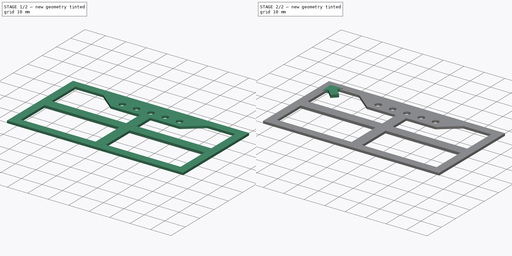
[diagram: build sequence overview — one tinted view per stage of 2, left to right]
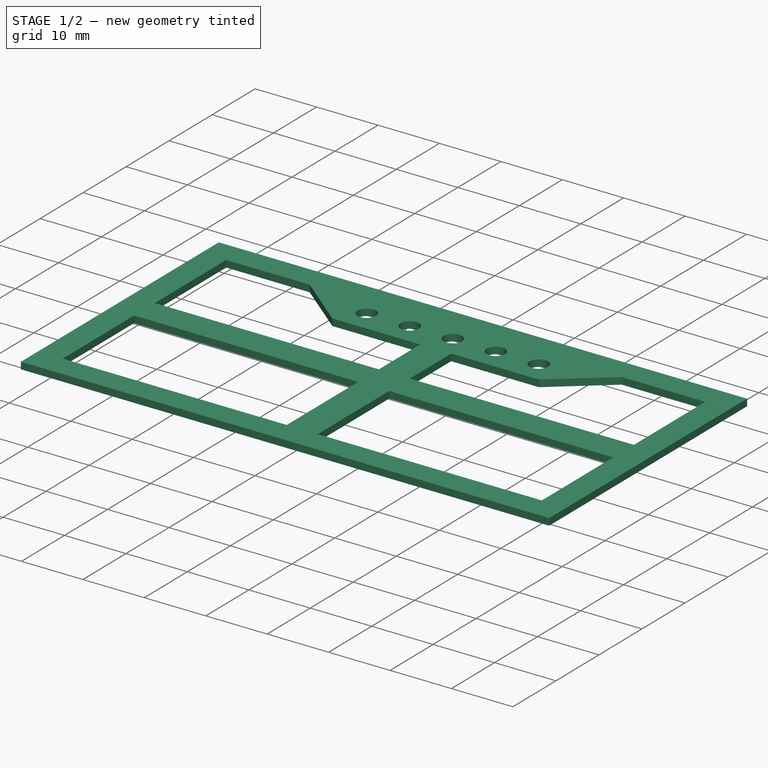
[diagram: stage 1 of 2 — iso view after this stage's code; geometry added in this stage tinted green]
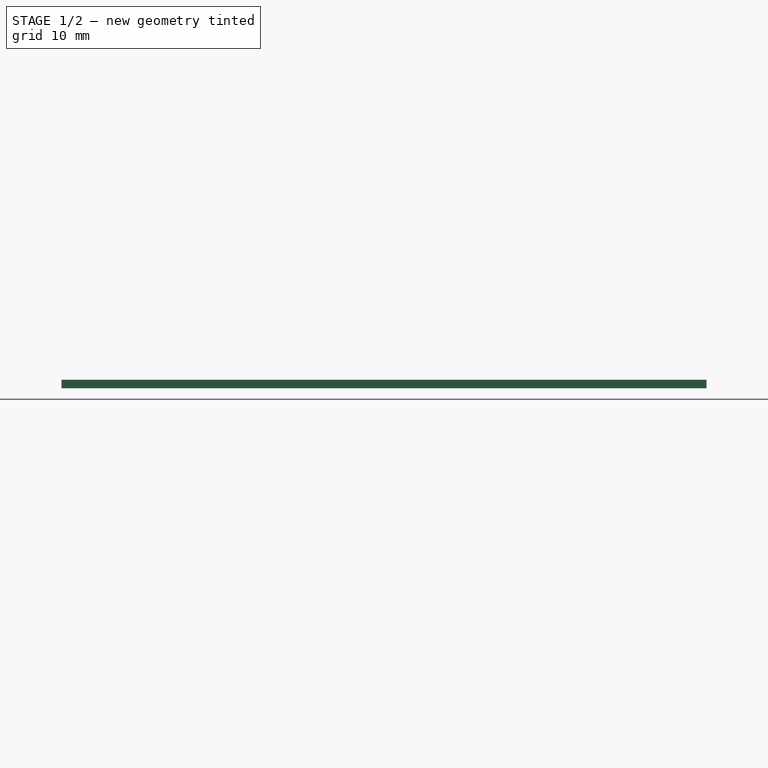
[diagram: stage 1 of 2 — front view after this stage's code; geometry added in this stage tinted green]
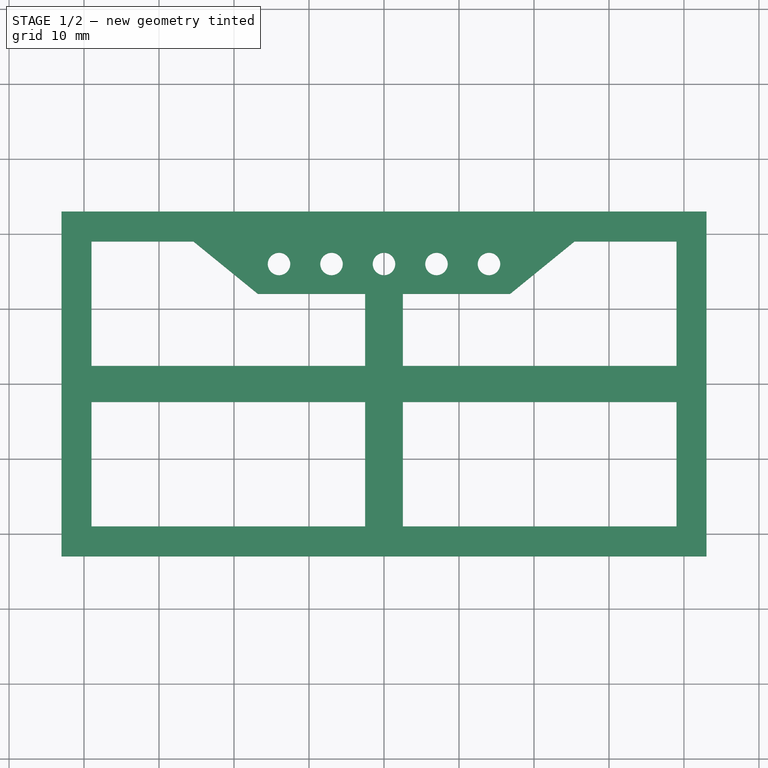
[diagram: stage 1 of 2 — top view after this stage's code; geometry added in this stage tinted green]
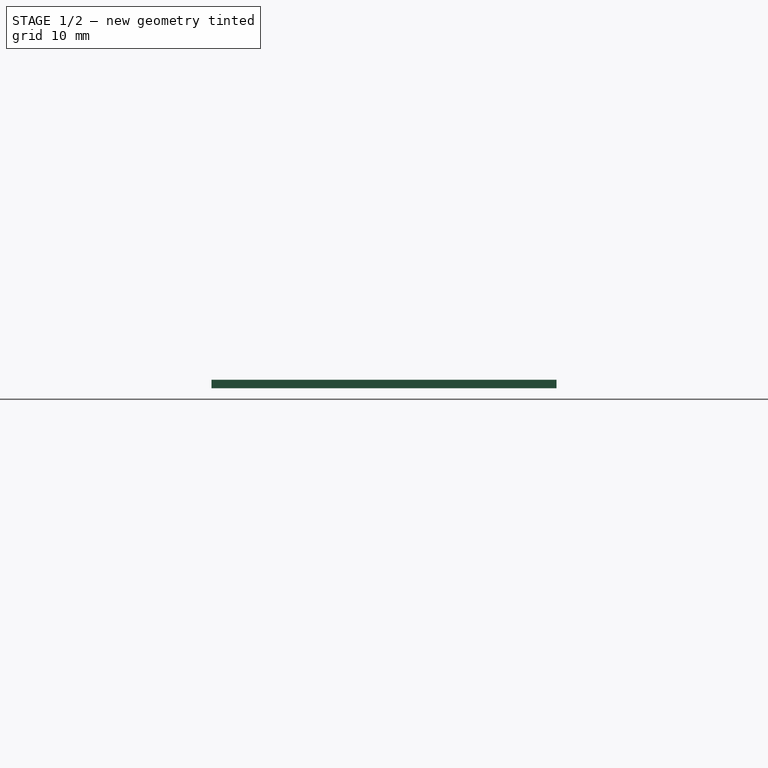
[diagram: stage 1 of 2 — right view after this stage's code; geometry added in this stage tinted green]
FCSTD DOCUMENT  (FreeCAD 0.20R29410 (Git))
Label: tools-case-side-panel
License: All rights reserved
LicenseURL: http://en.wikipedia.org/wiki/All_rights_reserved
objects: Sketcher::SketchObject×2, PartDesign::Pad×2, Part::FeaturePython×1, PartDesign::SubShapeBinder×1, PartDesign::Body×1
note: 9 computed .brp shape members not serialized (recipe doc carries the construction recipe); baked Part::Feature solids carry a one-line shape summary decoded from their .brp

FEATURE [Part::FeaturePython] b_case_side_panel_001_  label="REF_part"  # a2plus imported part (geometry in sourceFile) (typed FeaturePython)
  Placement = pos=(0,0,0) rot=(1,0,0;4.71239rad)
  a2p_Version = V0.1
  fixedPosition = true
  objectType = a2pPart
  sourceFile = .\case-side-panel.FCStd
  subassemblyImport = false
  timeLastImport = 1.68072e+09
  updateColors = true
FEATURE [PartDesign::SubShapeBinder] Binder  label="bdPanel"
  BindCopyOnChange = 0
  BindMode = 0
  ClaimChildren = false
  Context = -> Body [Binder.]
  Fuse = false
  MakeFace = true
  OffsetFill = false
  OffsetIntersection = false
  OffsetJoinType = 0
  OffsetOpenResult = false
  PartialLoad = false
  Relative = true
  Support = -> [b_case_side_panel_001_[Face10]]
  _Version = 2
FEATURE [Sketcher::SketchObject] Sketch  label="skBase"
  ExternalGeometry = -> [Binder]
  FullyConstrained = false
  MapMode = 5
  Support = -> [XY_Plane]
  sketch-geometry (35):
    g0: LineSegment StartX=-43 StartY=23 StartZ=0 EndX=43 EndY=23 EndZ=0
    g1: LineSegment StartX=43 StartY=23 StartZ=0 EndX=43 EndY=-23 EndZ=0
    g2: LineSegment StartX=43 StartY=-23 StartZ=0 EndX=-43 EndY=-23 EndZ=0
    g3: LineSegment StartX=-43 StartY=-23 StartZ=0 EndX=-43 EndY=23 EndZ=0
    g4: LineSegment StartX=-39 StartY=19 StartZ=0 EndX=39 EndY=19 EndZ=0
    g5: LineSegment StartX=39 StartY=19 StartZ=0 EndX=39 EndY=-19 EndZ=0
    g6: LineSegment StartX=39 StartY=-19 StartZ=0 EndX=-39 EndY=-19 EndZ=0
    g7: LineSegment StartX=-39 StartY=-19 StartZ=0 EndX=-39 EndY=19 EndZ=0
    g8: Circle CenterX=-39 CenterY=19 CenterZ=0 NormalX=0 NormalY=0 NormalZ=1 AngleXU=0 Radius=4
    g9: Circle CenterX=39 CenterY=-19 CenterZ=0 NormalX=0 NormalY=0 NormalZ=1 AngleXU=0 Radius=4
    g10: Circle CenterX=-14 CenterY=16 CenterZ=0 NormalX=0 NormalY=0 NormalZ=1 AngleXU=0 Radius=1.5
    g11: Circle CenterX=-7 CenterY=16 CenterZ=0 NormalX=0 NormalY=0 NormalZ=1 AngleXU=0 Radius=1.5
    g12: Circle CenterX=0 CenterY=16 CenterZ=0 NormalX=0 NormalY=0 NormalZ=1 AngleXU=0 Radius=1.5
    g13: Circle CenterX=7 CenterY=16 CenterZ=0 NormalX=0 NormalY=0 NormalZ=1 AngleXU=0 Radius=1.5
    g14: Circle CenterX=14 CenterY=16 CenterZ=0 NormalX=0 NormalY=0 NormalZ=1 AngleXU=0 Radius=1.5
    g15: LineSegment StartX=-25.3998 StartY=19 StartZ=0 EndX=-16.8137 EndY=12.0135 EndZ=0
    g16: LineSegment StartX=16.8137 StartY=12.0135 StartZ=0 EndX=25.3998 EndY=19 EndZ=0
    g17: LineSegment StartX=25.3998 StartY=19 StartZ=0 EndX=39 EndY=19 EndZ=0
    g18: LineSegment StartX=-39 StartY=19 StartZ=0 EndX=-25.3998 EndY=19 EndZ=0
    g19: LineSegment StartX=-16.8137 StartY=12.0135 StartZ=0 EndX=-2.52317 EndY=12.0135 EndZ=0
    g20: LineSegment StartX=-2.52317 StartY=12.0135 StartZ=0 EndX=-2.52317 EndY=2.40891 EndZ=0
    g21: LineSegment StartX=-2.52317 StartY=2.40891 StartZ=0 EndX=-39 EndY=2.40891 EndZ=0
    g22: LineSegment StartX=-39 StartY=2.40891 StartZ=0 EndX=-39 EndY=19 EndZ=0
    g23: LineSegment StartX=-2.52317 StartY=-2.40891 StartZ=0 EndX=-39 EndY=-2.40891 EndZ=0
    g24: LineSegment StartX=-39 StartY=-2.40891 StartZ=0 EndX=-39 EndY=-19 EndZ=0
    g25: LineSegment StartX=-39 StartY=-19 StartZ=0 EndX=-2.52317 EndY=-19 EndZ=0
    g26: LineSegment StartX=-2.52317 StartY=-19 StartZ=0 EndX=-2.52317 EndY=-2.40891 EndZ=0
    g27: LineSegment StartX=2.52317 StartY=-2.40891 StartZ=0 EndX=2.52317 EndY=-19 EndZ=0
    g28: LineSegment StartX=2.52317 StartY=-19 StartZ=0 EndX=39 EndY=-19 EndZ=0
    g29: LineSegment StartX=39 StartY=-19 StartZ=0 EndX=39 EndY=-2.40891 EndZ=0
    g30: LineSegment StartX=39 StartY=-2.40891 StartZ=0 EndX=2.52317 EndY=-2.40891 EndZ=0
    g31: LineSegment StartX=16.8137 StartY=12.0135 StartZ=0 EndX=2.52317 EndY=12.0135 EndZ=0
    g32: LineSegment StartX=2.52317 StartY=12.0135 StartZ=0 EndX=2.52317 EndY=2.40891 EndZ=0
    g33: LineSegment StartX=2.52317 StartY=2.40891 StartZ=0 EndX=39 EndY=2.40891 EndZ=0
    g34: LineSegment StartX=39 StartY=2.40891 StartZ=0 EndX=39 EndY=19 EndZ=0
  constraints (84):
    c: Coincident(g0,g1)
    c: Coincident(g1,g2)
    c: Coincident(g2,g3)
    c: Coincident(g3,g0)
    c: Horizontal(g0)
    c: Horizontal(g2)
    c: Vertical(g1)
    c: Vertical(g3)
    c: Coincident(g0,g-3)
    c: Coincident(g1,g-4)
    c: Coincident(g4,g5)
    c: Coincident(g5,g6)
    c: Coincident(g6,g7)
    c: Coincident(g7,g4)
    c: Horizontal(g4)
    c: Horizontal(g6)
    c: Vertical(g5)
    c: Vertical(g7)
    c: Coincident(g8,g4)
    c: Coincident(g9,g5)
    c: Tangent(g9,g1)
    c: Tangent(g9,g2)
    c: Tangent(g8,g0)
    c: Tangent(g8,g3)
    c: Equal(g8,g9)
    c: Radius(g8) = 4
    c: Coincident(g10,g-5)
    c: Coincident(g11,g-6)
    c: Coincident(g12,g-7)
    c: Coincident(g13,g-8)
    c: Coincident(g14,g-9)
    c: Equal(g14,g13)
    c: Equal(g14,g12)
    c: Equal(g14,g11)
    c: Equal(g14,g10)
    c: Diameter(g14) = 3
    c: PointOnObject(g15,g4)
    c: PointOnObject(g16,g4)
    c: Coincident(g16,g17)
    c: Coincident(g17,g4)
    c: Coincident(g18,g15)
    c: Equal(g18,g17)
    c: Symmetric(g16,g15,g-2)
    c: Coincident(g15,g19)
    c: Horizontal(g19)
    c: Coincident(g19,g20)
    c: Vertical(g20)
    c: Coincident(g20,g21)
    c: Horizontal(g21)
    c: Coincident(g21,g22)
    c: Coincident(g22,g18)
    c: Vertical(g22)
    c: Coincident(g18,g4)
    c: PointOnObject(g23,g7)
    c: Horizontal(g23)
    c: Coincident(g23,g24)
    c: Coincident(g24,g6)
    c: Coincident(g24,g25)
    c: PointOnObject(g25,g6)
    c: Coincident(g25,g26)
    c: Coincident(g26,g23)
    c: Vertical(g26)
    c: PointOnObject(g27,g6)
    c: Vertical(g27)
    c: Coincident(g27,g28)
    c: Coincident(g28,g5)
    c: Coincident(g28,g29)
    c: PointOnObject(g29,g5)
    c: Coincident(g29,g30)
    c: Coincident(g30,g27)
    c: Horizontal(g30)
    c: Coincident(g16,g31)
    c: Horizontal(g31)
    c: Coincident(g31,g32)
    c: Vertical(g32)
    c: Coincident(g32,g33)
    c: PointOnObject(g33,g5)
    c: Horizontal(g33)
    c: Coincident(g33,g34)
    c: Coincident(g34,g17)
    c: Symmetric(g32,g23,g-1)
    c: Symmetric(g20,g27,g-1)
    c: Vertical(g27,g32)
    c: Horizontal(g32,g20)
FEATURE [PartDesign::Pad] Pad  label="pdBase"
  Direction = (0,0,1)
  Length = 1.12
  Length2 = 10
  Profile = -> Sketch
  ReferenceAxis = -> Sketch [N_Axis]
  Type = 0
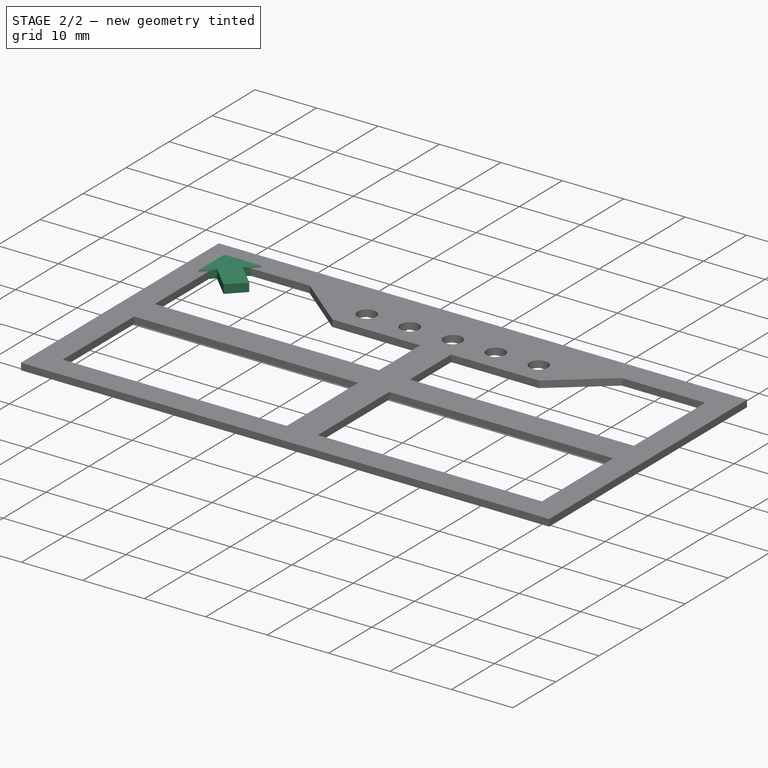
[diagram: stage 2 of 2 — iso view after this stage's code; geometry added in this stage tinted green]
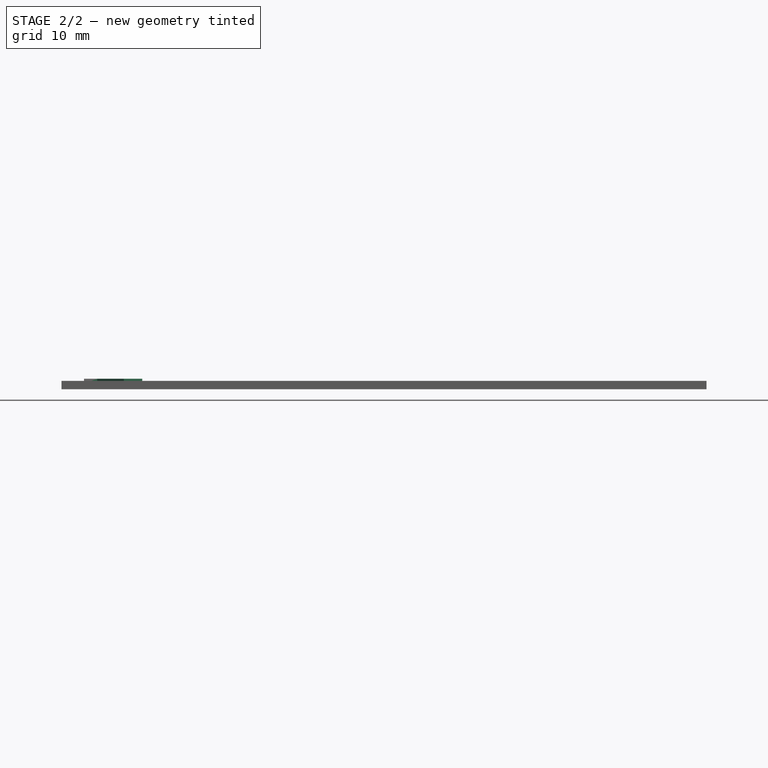
[diagram: stage 2 of 2 — front view after this stage's code; geometry added in this stage tinted green]
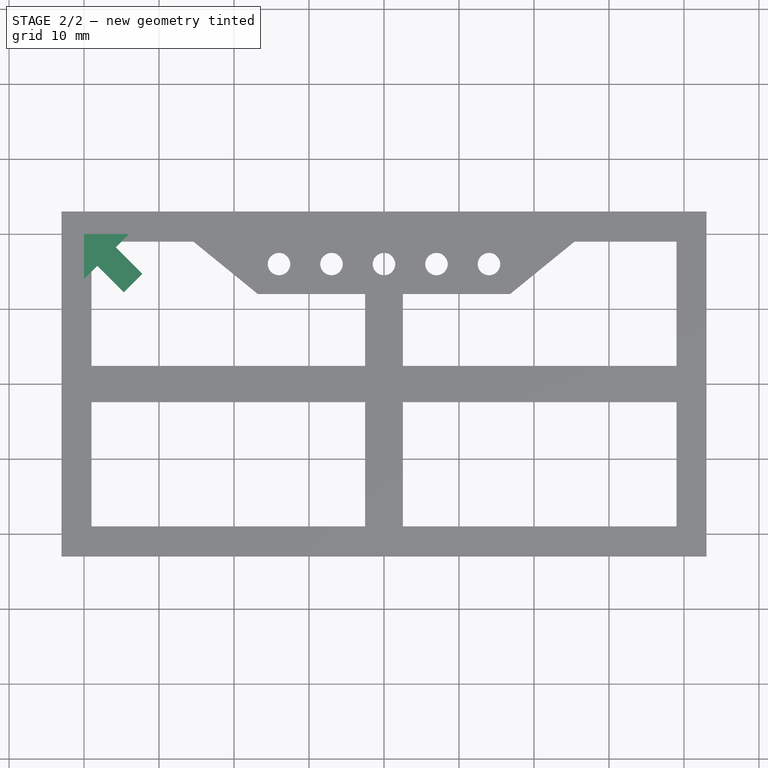
[diagram: stage 2 of 2 — top view after this stage's code; geometry added in this stage tinted green]
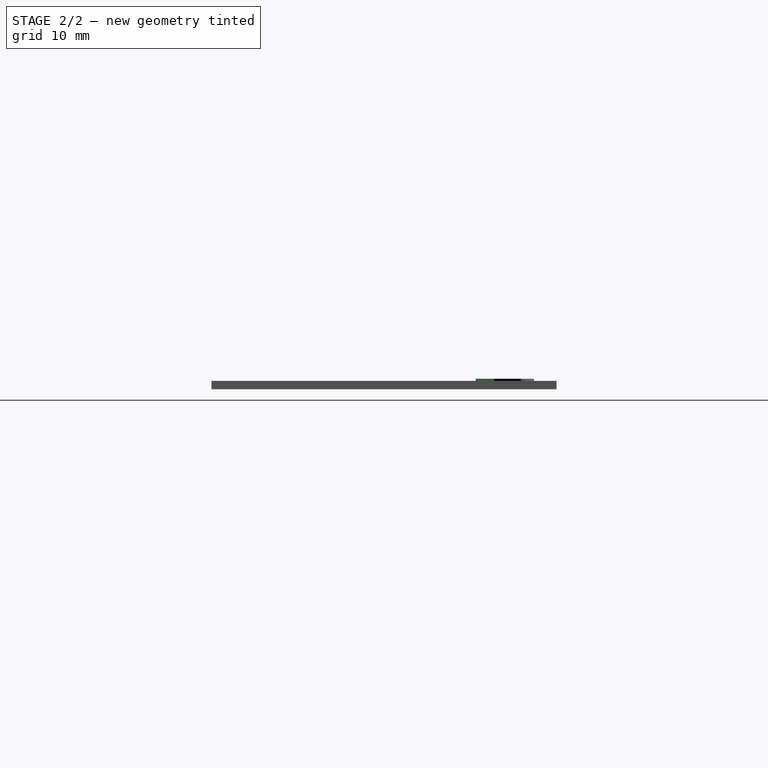
[diagram: stage 2 of 2 — right view after this stage's code; geometry added in this stage tinted green]
FEATURE [Sketcher::SketchObject] Sketch001  label="skArrow"
  ExternalGeometry = -> [Binder]
  FullyConstrained = true
  MapMode = 5
  Support = -> [XY_Plane]
  sketch-geometry (9):
    g0: LineSegment StartX=-40 StartY=20 StartZ=0 EndX=-34 EndY=20 EndZ=0
    g1: LineSegment StartX=-34 StartY=20 StartZ=0 EndX=-35.7678 EndY=18.2322 EndZ=0
    g2: LineSegment StartX=-35.7678 StartY=18.2322 StartZ=0 EndX=-32.2322 EndY=14.6967 EndZ=0
    g3: LineSegment StartX=-32.2322 StartY=14.6967 StartZ=0 EndX=-34.6967 EndY=12.2322 EndZ=0
    g4: LineSegment StartX=-34.6967 StartY=12.2322 StartZ=0 EndX=-38.2322 EndY=15.7678 EndZ=0
    g5: LineSegment StartX=-38.2322 StartY=15.7678 StartZ=0 EndX=-40 EndY=14 EndZ=0
    g6: LineSegment StartX=-40 StartY=14 StartZ=0 EndX=-40 EndY=20 EndZ=0
    g7: LineSegment StartX=-40 StartY=14 StartZ=0 EndX=-34 EndY=20 EndZ=0
    g8: Circle CenterX=-40 CenterY=20 CenterZ=0 NormalX=0 NormalY=0 NormalZ=1 AngleXU=0 Radius=3
  constraints (25):
    c: Horizontal(g0)
    c: Coincident(g0,g1)
    c: Coincident(g1,g2)
    c: Coincident(g2,g3)
    c: Coincident(g3,g4)
    c: Coincident(g4,g5)
    c: Coincident(g5,g6)
    c: Vertical(g6)
    c: Coincident(g0,g6)
    c: Coincident(g7,g5)
    c: Coincident(g7,g0)
    c: PointOnObject(g1,g7)
    c: PointOnObject(g4,g7)
    c: Perpendicular(g3,g2)
    c: Perpendicular(g3,g4)
    c: Perpendicular(g4,g5)
    c: Equal(g1,g5)
    c: Angle(g0,g1) = 0.785398
    c: Distance(g1) = 2.5
    c: Distance(g0) = 6
    c: Distance(g4) = 5
    c: Coincident(g8,g0)
    c: Tangent(g8,g-3)
    c: Tangent(g8,g-4)
    c: Radius(g8) = 3
FEATURE [PartDesign::Pad] Pad001  label="pdArrow"
  BaseFeature = -> Pad
  Direction = (0,0,1)
  Length = 1.4
  Length2 = 10
  Profile = -> Sketch001
  ReferenceAxis = -> Sketch001 [N_Axis]
  Refine = true
  Type = 0
FEATURE [PartDesign::Body] Body
  Group = -> [Binder,Sketch,Pad,Sketch001,Pad001]
  Origin = -> Origin
  Tip = -> Pad001
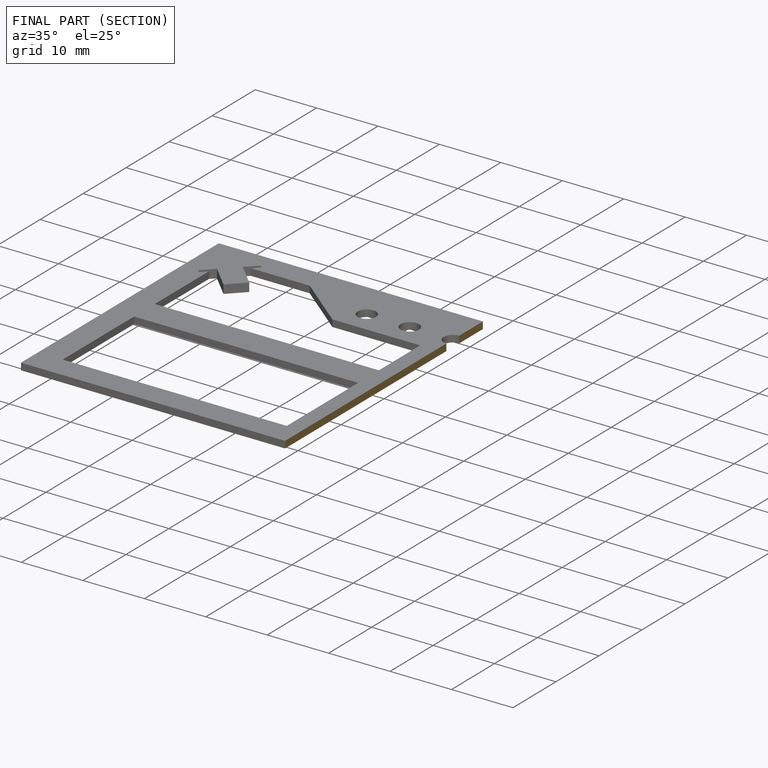
[diagram: finished part — half-section view (interior)]
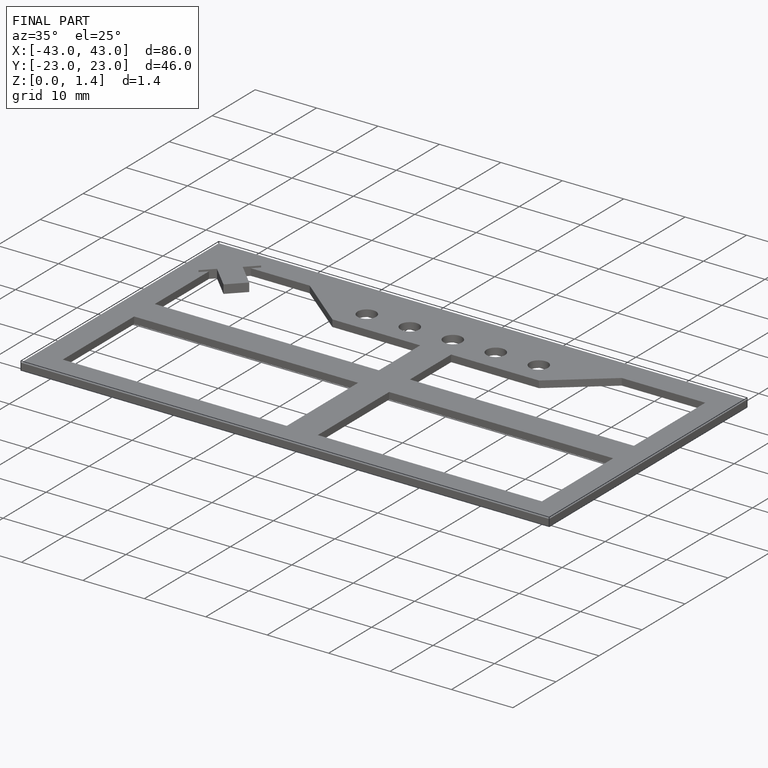
[diagram: finished part — iso view with bounding-box wireframe]
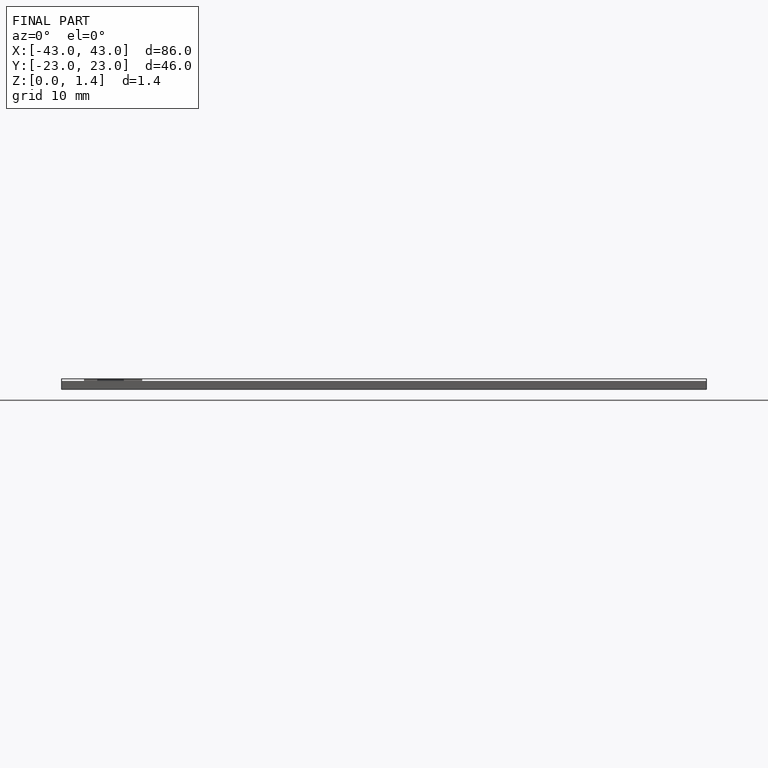
[diagram: finished part — front view with bounding-box wireframe]
